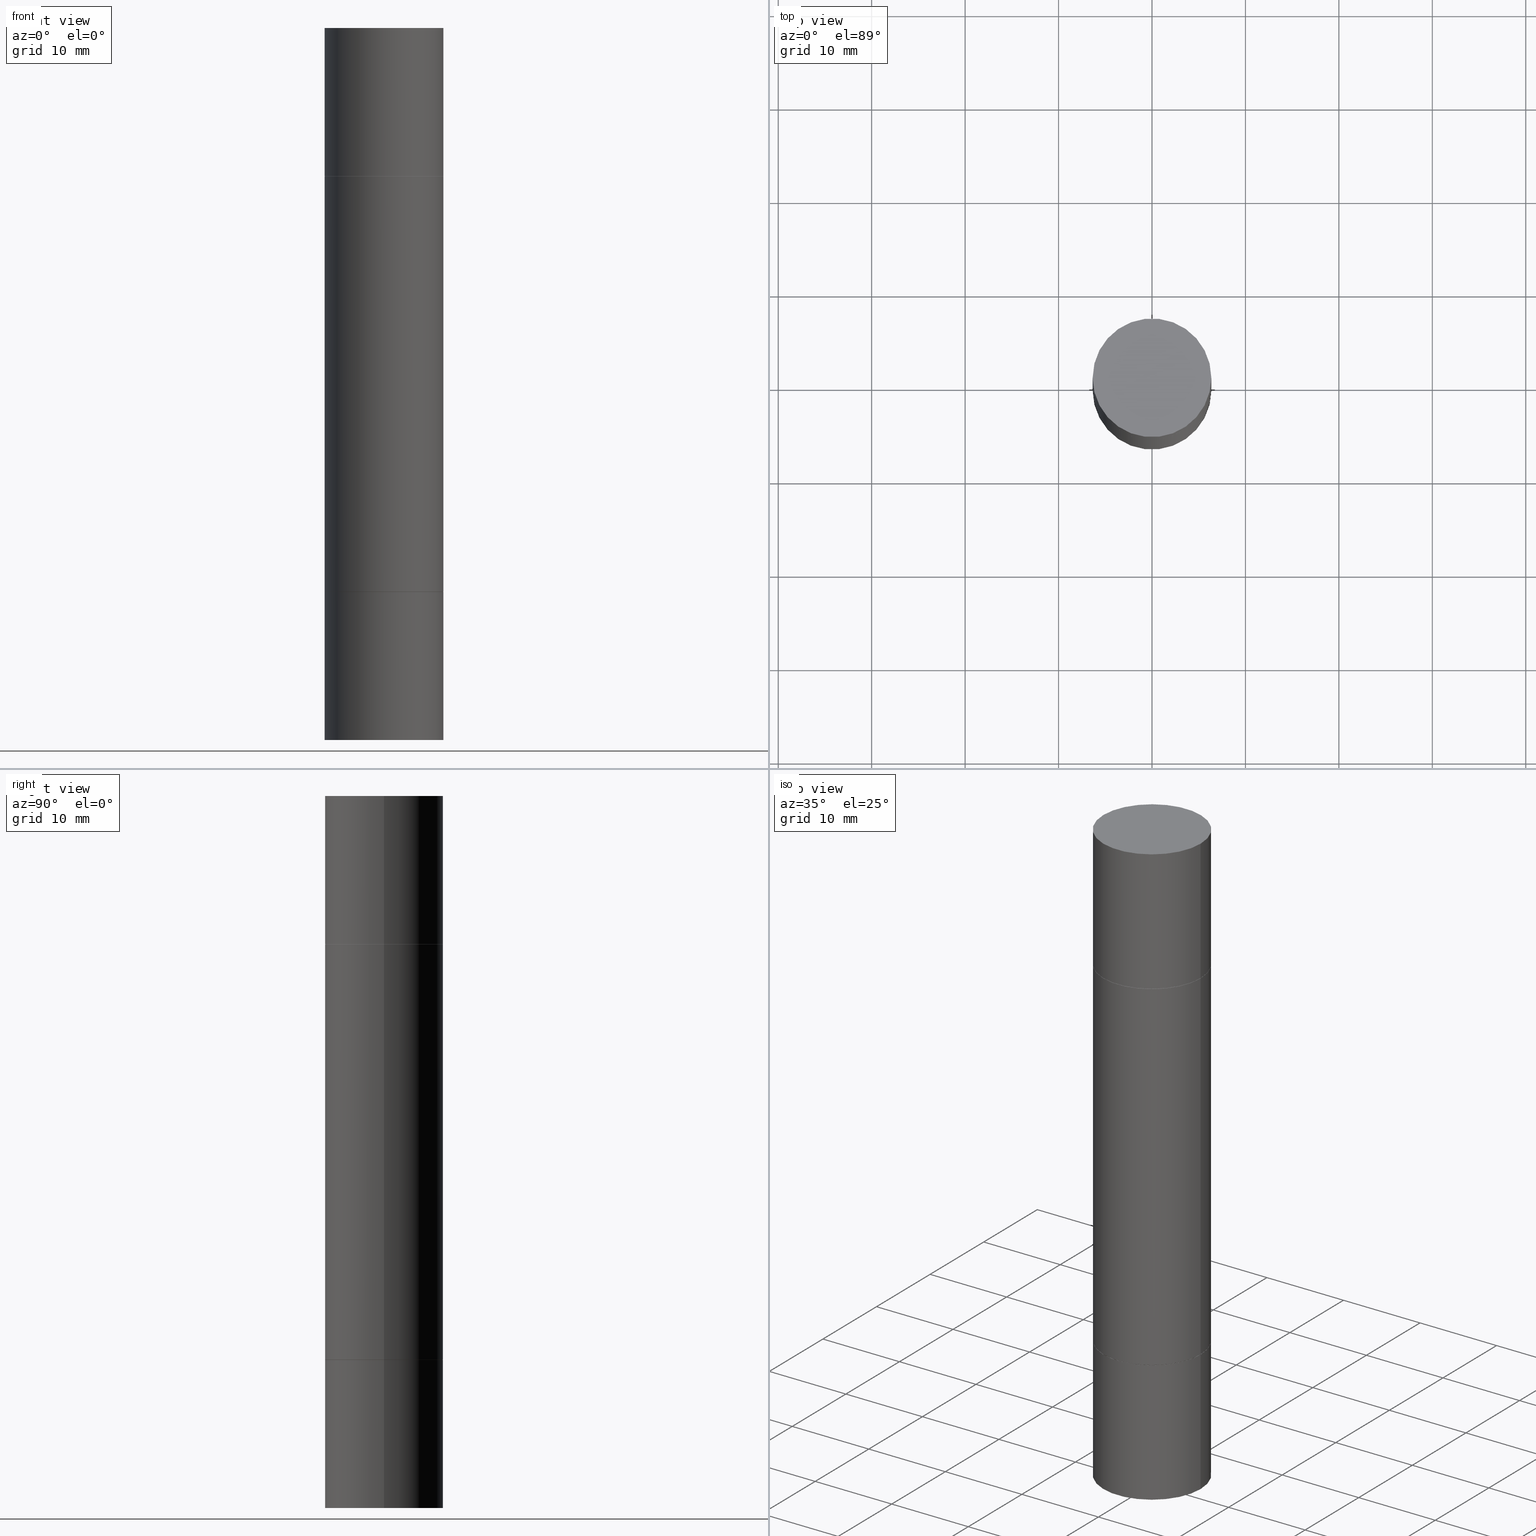
[diagram: canonical four-view strip — front | top / right | iso, engineering-drawing reading convention]
A machine part, canonical four-view strip (front | top / right | iso — engineering-drawing reading convention). The complete STEP part file that produces these views, byte-faithful:
ISO-10303-21;
HEADER;
FILE_DESCRIPTION (( 'STEP AP203' ),
    '1' );
FILE_NAME ('31579.STEP',
    '2024-03-04T15:43:16',
    ( '' ),
    ( '' ),
    'SwSTEP 2.0',
    'SolidWorks 2023',
    '' );
FILE_SCHEMA (( 'CONFIG_CONTROL_DESIGN' ));
ENDSEC;

DATA;
#1 = DIRECTION ( 'NONE',  ( 2.445468806185136597E-29, 3.492890411551752677E-15, 1.000000000000000000 ) ) ;
#2 = CARTESIAN_POINT ( 'NONE',  ( 0.2499999999999998335, -5.456569567838164864E-15, -1.499999999999999556 ) ) ;
#3 = ORIENTED_EDGE ( 'NONE', *, *, #418, .F. ) ;
#4 = CYLINDRICAL_SURFACE ( 'NONE', #509, 0.2499999999999998335 ) ;
#5 = PERSON_AND_ORGANIZATION ( #258, #582 ) ;
#6 = FACE_OUTER_BOUND ( 'NONE', #447, .T. ) ;
#7 = EDGE_CURVE ( 'NONE', #621, #54, #79, .T. ) ;
#8 = ORIENTED_EDGE ( 'NONE', *, *, #196, .T. ) ;
#9 = AXIS2_PLACEMENT_3D ( 'NONE', #560, #136, #131 ) ;
#10 = CYLINDRICAL_SURFACE ( 'NONE', #620, 0.2500000000000000000 ) ;
#11 = ADVANCED_FACE ( 'NONE', ( #77 ), #396, .F. ) ;
#12 = APPROVAL_ROLE ( '' ) ;
#13 = CARTESIAN_POINT ( 'NONE',  ( 1.745740669421624462E-15, 0.2499999999999978073, -0.6249999999999997780 ) ) ;
#14 = VERTEX_POINT ( 'NONE', #296 ) ;
#15 = CYLINDRICAL_SURFACE ( 'NONE', #318, 0.2500000000000000000 ) ;
#16 = PERSON_AND_ORGANIZATION_ROLE ( 'classification_officer' ) ;
#17 = DIRECTION ( 'NONE',  ( -2.445468806185136597E-29, -3.492890411551752677E-15, -1.000000000000000000 ) ) ;
#18 = ORIENTED_EDGE ( 'NONE', *, *, #84, .F. ) ;
#19 = ORIENTED_EDGE ( 'NONE', *, *, #148, .F. ) ;
#20 = ADVANCED_FACE ( 'NONE', ( #90 ), #453, .T. ) ;
#21 = CARTESIAN_POINT ( 'NONE',  ( 7.336406418555409790E-29, 2.113609062914567177E-18, 1.092739197465705287E-15 ) ) ;
#22 = DIRECTION ( 'NONE',  ( 1.000000000000000000, -6.982962677686266711E-15, 4.876176775795935793E-29 ) ) ;
#23 = ORIENTED_EDGE ( 'NONE', *, *, #141, .F. ) ;
#24 = FACE_OUTER_BOUND ( 'NONE', #634, .T. ) ;
#25 = EDGE_CURVE ( 'NONE', #515, #151, #456, .T. ) ;
#26 = VECTOR ( 'NONE', #88, 39.37007874015748143 ) ;
#27 = AXIS2_PLACEMENT_3D ( 'NONE', #482, #230, #225 ) ;
#28 = DIRECTION ( 'NONE',  ( 2.445468806185136597E-29, 3.492890411551752677E-15, 1.000000000000000000 ) ) ;
#29 =( CONVERSION_BASED_UNIT ( 'INCH', #501 ) LENGTH_UNIT ( ) NAMED_UNIT ( #126 ) );
#30 = CARTESIAN_POINT ( 'NONE',  ( 5.807988414689700538E-29, -2.180942898156930788E-15, -0.6249999999999988898 ) ) ;
#31 = DIRECTION ( 'NONE',  ( 1.000000000000000000, -6.982962677686266711E-15, 0.000000000000000000 ) ) ;
#32 = EDGE_CURVE ( 'NONE', #619, #345, #150, .T. ) ;
#33 = CC_DESIGN_PERSON_AND_ORGANIZATION_ASSIGNMENT ( #428, #586, ( #307 ) ) ;
#34 = DIRECTION ( 'NONE',  ( 2.438088387897959769E-29, 3.492890411551753071E-15, 1.000000000000000000 ) ) ;
#35 = AXIS2_PLACEMENT_3D ( 'NONE', #240, #28, #657 ) ;
#36 = AXIS2_PLACEMENT_3D ( 'NONE', #234, #299, #602 ) ;
#37 = CARTESIAN_POINT ( 'NONE',  ( -0.2489999999999999991, -4.726788967118193123E-16, -0.6249999999999988898 ) ) ;
#38 = CARTESIAN_POINT ( 'NONE',  ( -0.2500000000000000000, -8.761433126149462132E-15, -2.999999999999999112 ) ) ;
#39 = EDGE_CURVE ( 'NONE', #408, #336, #298, .T. ) ;
#40 = FACE_OUTER_BOUND ( 'NONE', #498, .T. ) ;
#41 = VERTEX_POINT ( 'NONE', #342 ) ;
#42 = CIRCLE ( 'NONE', #201, 0.2500000000000000000 ) ;
#43 = EDGE_LOOP ( 'NONE', ( #178, #435 ) ) ;
#44 = ORIENTED_EDGE ( 'NONE', *, *, #441, .F. ) ;
#45 = DIRECTION ( 'NONE',  ( 2.445468806185136597E-29, 3.492890411551752677E-15, 1.000000000000000000 ) ) ;
#46 = EDGE_CURVE ( 'NONE', #110, #528, #500, .T. ) ;
#47 = CARTESIAN_POINT ( 'NONE',  ( 0.000000000000000000, 0.000000000000000000, 0.000000000000000000 ) ) ;
#48 = AXIS2_PLACEMENT_3D ( 'NONE', #633, #468, #314 ) ;
#49 = AXIS2_PLACEMENT_3D ( 'NONE', #237, #547, #241 ) ;
#50 = LINE ( 'NONE', #529, #406 ) ;
#51 = APPROVAL_STATUS ( 'not_yet_approved' ) ;
#52 = LINE ( 'NONE', #615, #365 ) ;
#53 = EDGE_CURVE ( 'NONE', #306, #146, #138, .T. ) ;
#54 = VERTEX_POINT ( 'NONE', #300 ) ;
#55 = DIRECTION ( 'NONE',  ( -2.445468806185136597E-29, -3.492890411551752677E-15, -1.000000000000000000 ) ) ;
#56 = PERSON_AND_ORGANIZATION ( #258, #582 ) ;
#57 = LINE ( 'NONE', #252, #616 ) ;
#58 = ORIENTED_EDGE ( 'NONE', *, *, #203, .T. ) ;
#59 = FACE_OUTER_BOUND ( 'NONE', #259, .T. ) ;
#60 = APPROVAL_DATE_TIME ( #283, #156 ) ;
#61 = DIRECTION ( 'NONE',  ( 2.438088387897959769E-29, 3.492890411551753071E-15, 1.000000000000000000 ) ) ;
#62 = ORIENTED_EDGE ( 'NONE', *, *, #493, .F. ) ;
#63 = EDGE_LOOP ( 'NONE', ( #647, #236 ) ) ;
#64 = FACE_OUTER_BOUND ( 'NONE', #375, .T. ) ;
#65 = AXIS2_PLACEMENT_3D ( 'NONE', #357, #470, #413 ) ;
#66 = AXIS2_PLACEMENT_3D ( 'NONE', #372, #215, #321 ) ;
#67 = DATE_AND_TIME ( #271, #407 ) ;
#68 = FACE_OUTER_BOUND ( 'NONE', #484, .T. ) ;
#69 = ADVANCED_FACE ( 'NONE', ( #392 ), #104, .T. ) ;
#70 = ORIENTED_EDGE ( 'NONE', *, *, #457, .F. ) ;
#71 = CARTESIAN_POINT ( 'NONE',  ( 7.336406418555409790E-29, -1.047444401652943635E-14, -3.000000000000000444 ) ) ;
#72 = DATE_AND_TIME ( #229, #81 ) ;
#73 = CARTESIAN_POINT ( 'NONE',  ( 5.807988414689700538E-29, -2.180942898156930788E-15, -0.6249999999999988898 ) ) ;
#74 = ADVANCED_FACE ( 'NONE', ( #502 ), #200, .T. ) ;
#75 = ORIENTED_EDGE ( 'NONE', *, *, #251, .T. ) ;
#76 = DIRECTION ( 'NONE',  ( 2.445468806185136597E-29, 3.492890411551752677E-15, 1.000000000000000000 ) ) ;
#77 = FACE_OUTER_BOUND ( 'NONE', #157, .T. ) ;
#78 = DIRECTION ( 'NONE',  ( 1.000000000000000000, -6.982962677686266711E-15, 0.000000000000000000 ) ) ;
#79 = CIRCLE ( 'NONE', #35, 0.2500000000000000000 ) ;
#80 = AXIS2_PLACEMENT_3D ( 'NONE', #164, #169, #328 ) ;
#81 = LOCAL_TIME ( 10, 43, 16.00000000000000000, #219 ) ;
#82 = DIRECTION ( 'NONE',  ( 1.000000000000000000, -6.982962677686266711E-15, 0.000000000000000000 ) ) ;
#83 = CARTESIAN_POINT ( 'NONE',  ( 0.2489999999999999991, -3.919700604900811057E-15, -0.6249999999999988898 ) ) ;
#84 = EDGE_CURVE ( 'NONE', #281, #206, #85, .T. ) ;
#85 = LINE ( 'NONE', #243, #480 ) ;
#86 = ADVANCED_FACE ( 'NONE', ( #250 ), #505, .T. ) ;
#87 = DIRECTION ( 'NONE',  ( 2.445468806185136597E-29, 3.492890411551752677E-15, 1.000000000000000000 ) ) ;
#88 = DIRECTION ( 'NONE',  ( -2.445468806185136877E-29, -3.492890411551753071E-15, -1.000000000000000000 ) ) ;
#89 = CIRCLE ( 'NONE', #264, 0.2500000000000000000 ) ;
#90 = FACE_OUTER_BOUND ( 'NONE', #356, .T. ) ;
#91 = DIRECTION ( 'NONE',  ( 1.000000000000000000, -6.982962677686266711E-15, 0.000000000000000000 ) ) ;
#92 = PRODUCT_DEFINITION_SHAPE ( 'NONE', 'NONE',  #400 ) ;
#93 = ORIENTED_EDGE ( 'NONE', *, *, #139, .T. ) ;
#94 = AXIS2_PLACEMENT_3D ( 'NONE', #30, #552, #346 ) ;
#95 = AXIS2_PLACEMENT_3D ( 'NONE', #99, #467, #627 ) ;
#96 = ORIENTED_EDGE ( 'NONE', *, *, #174, .F. ) ;
#97 = ORIENTED_EDGE ( 'NONE', *, *, #25, .T. ) ;
#98 = ADVANCED_FACE ( 'NONE', ( #244 ), #603, .T. ) ;
#99 = CARTESIAN_POINT ( 'NONE',  ( 0.000000000000000000, 0.000000000000000000, -1.499999999999999556 ) ) ;
#100 = FACE_OUTER_BOUND ( 'NONE', #474, .T. ) ;
#101 = ORIENTED_EDGE ( 'NONE', *, *, #25, .F. ) ;
#102 = CARTESIAN_POINT ( 'NONE',  ( 0.2500000000000000000, -1.743627060358652092E-15, 1.092739197465705287E-15 ) ) ;
#103 = CARTESIAN_POINT ( 'NONE',  ( 5.805542945883514935E-29, -8.288776698413628688E-15, -2.374000000000000110 ) ) ;
#104 = CONICAL_SURFACE ( 'NONE', #497, 0.2489999999999999991, 0.7853981633974141952 ) ;
#105 = AXIS2_PLACEMENT_3D ( 'NONE', #334, #393, #132 ) ;
#106 = ORIENTED_EDGE ( 'NONE', *, *, #144, .F. ) ;
#107 = LOCAL_TIME ( 10, 43, 16.00000000000000000, #325 ) ;
#108 = DIRECTION ( 'NONE',  ( 1.000000000000000000, -6.982962677686266711E-15, 0.000000000000000000 ) ) ;
#109 = DIRECTION ( 'NONE',  ( -0.7071067811865232589, 7.493145998870265808E-15, 0.7071067811865715536 ) ) ;
#110 = VERTEX_POINT ( 'NONE', #508 ) ;
#111 = CARTESIAN_POINT ( 'NONE',  ( 0.2489999999999999991, -1.003102588649635236E-14, -2.375000000000000000 ) ) ;
#112 = APPROVAL_STATUS ( 'not_yet_approved' ) ;
#113 = LINE ( 'NONE', #637, #650 ) ;
#114 = ORIENTED_EDGE ( 'NONE', *, *, #249, .F. ) ;
#115 = DIRECTION ( 'NONE',  ( 1.000000000000000000, -6.982962677686265922E-15, 9.839502134516470631E-33 ) ) ;
#116 = APPROVAL_DATE_TIME ( #591, #175 ) ;
#117 = CARTESIAN_POINT ( 'NONE',  ( 0.000000000000000000, 0.000000000000000000, 0.000000000000000000 ) ) ;
#118 = EDGE_LOOP ( 'NONE', ( #469, #288, #494, #422 ) ) ;
#119 = CLOSED_SHELL ( 'NONE', ( #177, #98, #11, #274 ) ) ;
#120 = DIRECTION ( 'NONE',  ( 1.000000000000000000, -6.982962677686270655E-15, 0.000000000000000000 ) ) ;
#121 = AXIS2_PLACEMENT_3D ( 'NONE', #364, #55, #270 ) ;
#122 = AXIS2_PLACEMENT_3D ( 'NONE', #506, #297, #31 ) ;
#123 = CARTESIAN_POINT ( 'NONE',  ( 0.2500000000000000000, -3.926683567578497071E-15, -0.6249999999999988898 ) ) ;
#124 = ORIENTED_EDGE ( 'NONE', *, *, #638, .F. ) ;
#125 = DIRECTION ( 'NONE',  ( 1.000000000000000000, -6.982962677686266711E-15, 0.000000000000000000 ) ) ;
#126 = DIMENSIONAL_EXPONENTS ( 1.000000000000000000, 0.000000000000000000, 0.000000000000000000, 0.000000000000000000, 0.000000000000000000, 0.000000000000000000, 0.000000000000000000 ) ;
#127 = CARTESIAN_POINT ( 'NONE',  ( 0.2500000000000000000, -1.222229829501391170E-14, -2.999999999999999112 ) ) ;
#128 = CARTESIAN_POINT ( 'NONE',  ( 5.807988414689700538E-29, -8.292268179752471696E-15, -2.375000000000000000 ) ) ;
#129 = EDGE_CURVE ( 'NONE', #304, #54, #459, .T. ) ;
#130 = APPLICATION_PROTOCOL_DEFINITION ( 'international standard', 'config_control_design', 1994, #242 ) ;
#131 = DIRECTION ( 'NONE',  ( -1.000000000000000000, 6.982962677686265922E-15, -4.876176775795935793E-29 ) ) ;
#132 = DIRECTION ( 'NONE',  ( 1.000000000000000000, -6.982962677686267499E-15, 0.000000000000000000 ) ) ;
#133 = EDGE_CURVE ( 'NONE', #333, #338, #614, .T. ) ;
#134 = AXIS2_PLACEMENT_3D ( 'NONE', #576, #429, #268 ) ;
#135 = EDGE_CURVE ( 'NONE', #440, #273, #414, .T. ) ;
#136 = DIRECTION ( 'NONE',  ( 2.438088387897960049E-29, -3.491481338843145188E-15, -1.000000000000000000 ) ) ;
#137 = DIRECTION ( 'NONE',  ( 1.000000000000000000, -6.982962677686269866E-15, 0.000000000000000000 ) ) ;
#138 = LINE ( 'NONE', #38, #142 ) ;
#139 = EDGE_CURVE ( 'NONE', #184, #304, #660, .T. ) ;
#140 = CARTESIAN_POINT ( 'NONE',  ( 0.2500000000000000000, -1.222229829501391170E-14, -2.999999999999999112 ) ) ;
#141 = EDGE_CURVE ( 'NONE', #621, #440, #326, .T. ) ;
#142 = VECTOR ( 'NONE', #303, 39.37007874015748143 ) ;
#143 = AXIS2_PLACEMENT_3D ( 'NONE', #173, #190, #606 ) ;
#144 = EDGE_CURVE ( 'NONE', #273, #440, #208, .T. ) ;
#145 = DIRECTION ( 'NONE',  ( 2.445468806185136597E-29, 3.492890411551752677E-15, 1.000000000000000000 ) ) ;
#146 = VERTEX_POINT ( 'NONE', #583 ) ;
#147 = APPLICATION_CONTEXT ( 'configuration controlled 3d designs of mechanical parts and assemblies' ) ;
#148 = EDGE_CURVE ( 'NONE', #281, #151, #291, .T. ) ;
#149 = APPROVAL ( #51, 'UNSPECIFIED' ) ;
#150 = CIRCLE ( 'NONE', #578, 0.2489999999999999991 ) ;
#151 = VERTEX_POINT ( 'NONE', #526 ) ;
#152 = DIRECTION ( 'NONE',  ( 1.000000000000000000, -6.982962677686267499E-15, 0.000000000000000000 ) ) ;
#153 = CARTESIAN_POINT ( 'NONE',  ( 5.807988414689700538E-29, -2.180942898156930788E-15, -0.6249999999999988898 ) ) ;
#154 = CARTESIAN_POINT ( 'NONE',  ( 5.807988414689700538E-29, -8.292268179752471696E-15, -2.375000000000000000 ) ) ;
#155 = DIRECTION ( 'NONE',  ( -2.445468806185136877E-29, 3.491481338843145188E-15, 1.000000000000000000 ) ) ;
#156 = APPROVAL ( #433, 'UNSPECIFIED' ) ;
#157 = EDGE_LOOP ( 'NONE', ( #327, #629 ) ) ;
#158 = FACE_OUTER_BOUND ( 'NONE', #411, .T. ) ;
#159 = PERSON_AND_ORGANIZATION_ROLE ( 'creator' ) ;
#160 = CYLINDRICAL_SURFACE ( 'NONE', #676, 0.2500000000000000000 ) ;
#161 = AXIS2_PLACEMENT_3D ( 'NONE', #103, #567, #316 ) ;
#162 = AXIS2_PLACEMENT_3D ( 'NONE', #378, #17, #642 ) ;
#163 = ORIENTED_EDGE ( 'NONE', *, *, #409, .F. ) ;
#164 = CARTESIAN_POINT ( 'NONE',  ( 3.668203209277703774E-29, -5.237222008264716599E-15, -1.499999999999999556 ) ) ;
#165 = PERSON_AND_ORGANIZATION_ROLE ( 'design_supplier' ) ;
#166 = PLANE ( 'NONE',  #265 ) ;
#167 = ORIENTED_EDGE ( 'NONE', *, *, #541, .T. ) ;
#168 = ORIENTED_EDGE ( 'NONE', *, *, #638, .T. ) ;
#169 = DIRECTION ( 'NONE',  ( -0.000000000000000000, -3.492185875197449130E-15, -1.000000000000000000 ) ) ;
#170 = PERSON_AND_ORGANIZATION ( #258, #582 ) ;
#171 = CARTESIAN_POINT ( 'NONE',  ( 0.2500000000000000000, -1.743627060358652092E-15, 1.092739197465705287E-15 ) ) ;
#172 = ORIENTED_EDGE ( 'NONE', *, *, #231, .F. ) ;
#173 = CARTESIAN_POINT ( 'NONE',  ( 0.000000000000000000, -1.047655762559234344E-14, -2.999999999999999112 ) ) ;
#174 = EDGE_CURVE ( 'NONE', #345, #273, #52, .T. ) ;
#175 = APPROVAL ( #112, 'UNSPECIFIED' ) ;
#176 = CARTESIAN_POINT ( 'NONE',  ( -0.2489999999999999991, -6.517718313361599048E-15, -2.375000000000000000 ) ) ;
#177 = ADVANCED_FACE ( 'NONE', ( #263 ), #160, .T. ) ;
#178 = ORIENTED_EDGE ( 'NONE', *, *, #198, .T. ) ;
#179 = MANIFOLD_SOLID_BREP ( 'Mirror1[1]', #308 ) ;
#180 = CIRCLE ( 'NONE', #595, 0.2500000000000000000 ) ;
#181 = DIRECTION ( 'NONE',  ( 1.000000000000000000, -6.982962677686265922E-15, 4.876176775795935793E-29 ) ) ;
#182 = CIRCLE ( 'NONE', #652, 0.2489999999999999991 ) ;
#183 = CYLINDRICAL_SURFACE ( 'NONE', #162, 0.2499999999999998335 ) ;
#184 = VERTEX_POINT ( 'NONE', #272 ) ;
#185 = CARTESIAN_POINT ( 'NONE',  ( 5.805542945883514935E-29, -8.288776698413628688E-15, -2.374000000000000110 ) ) ;
#186 = DIRECTION ( 'NONE',  ( -2.438088387897959769E-29, -3.492890411551753071E-15, -1.000000000000000000 ) ) ;
#187 = CARTESIAN_POINT ( 'NONE',  ( 5.807988414689700538E-29, -8.292268179752471696E-15, -2.375000000000000000 ) ) ;
#188 = CARTESIAN_POINT ( 'NONE',  ( 5.807988414689700538E-29, -2.180942898156930788E-15, -0.6249999999999988898 ) ) ;
#189 = DIRECTION ( 'NONE',  ( -2.445468806185136877E-29, -3.492890411551753071E-15, -1.000000000000000000 ) ) ;
#190 = DIRECTION ( 'NONE',  ( -2.445468806185136597E-29, -3.492890411551752677E-15, -1.000000000000000000 ) ) ;
#191 = AXIS2_PLACEMENT_3D ( 'NONE', #401, #349, #562 ) ;
#192 = CIRCLE ( 'NONE', #27, 0.2489999999999999991 ) ;
#193 = CARTESIAN_POINT ( 'NONE',  ( 1.745740669421639647E-15, 0.2500000000000000000, 5.463695987328526437E-16 ) ) ;
#194 = CC_DESIGN_PERSON_AND_ORGANIZATION_ASSIGNMENT ( #56, #165, ( #369 ) ) ;
#195 = CARTESIAN_POINT ( 'NONE',  ( 5.807988414689700538E-29, -2.180942898156930788E-15, -0.6249999999999988898 ) ) ;
#196 = EDGE_CURVE ( 'NONE', #568, #338, #180, .T. ) ;
#197 = DIRECTION ( 'NONE',  ( 2.445468806185136597E-29, 3.492890411551752677E-15, 1.000000000000000000 ) ) ;
#198 = EDGE_CURVE ( 'NONE', #206, #14, #554, .T. ) ;
#199 = VECTOR ( 'NONE', #212, 39.37007874015748143 ) ;
#200 = CONICAL_SURFACE ( 'NONE', #94, 0.2489999999999999991, 0.7853981633974141952 ) ;
#201 = AXIS2_PLACEMENT_3D ( 'NONE', #361, #376, #575 ) ;
#202 = ORIENTED_EDGE ( 'NONE', *, *, #517, .F. ) ;
#203 = EDGE_CURVE ( 'NONE', #336, #146, #89, .T. ) ;
#204 = ORIENTED_EDGE ( 'NONE', *, *, #203, .F. ) ;
#205 = ORIENTED_EDGE ( 'NONE', *, *, #418, .T. ) ;
#206 = VERTEX_POINT ( 'NONE', #2 ) ;
#207 = CYLINDRICAL_SURFACE ( 'NONE', #483, 0.2500000000000000000 ) ;
#208 = CIRCLE ( 'NONE', #161, 0.2500000000000000000 ) ;
#209 = CONICAL_SURFACE ( 'NONE', #280, 0.2489999999999999991, 0.7853981633974141952 ) ;
#210 = ORIENTED_EDGE ( 'NONE', *, *, #517, .T. ) ;
#211 = CARTESIAN_POINT ( 'NONE',  ( 5.807988414689700538E-29, -2.180942898156930788E-15, -0.6249999999999988898 ) ) ;
#212 = DIRECTION ( 'NONE',  ( -2.445468806185136877E-29, -3.492890411551753071E-15, -1.000000000000000000 ) ) ;
#213 = ORIENTED_EDGE ( 'NONE', *, *, #39, .T. ) ;
#214 = CARTESIAN_POINT ( 'NONE',  ( 7.336406418555409790E-29, 2.113609062914567177E-18, 1.092739197465705287E-15 ) ) ;
#215 = DIRECTION ( 'NONE',  ( 0.000000000000000000, 0.000000000000000000, 1.000000000000000000 ) ) ;
#216 = CARTESIAN_POINT ( 'NONE',  ( -0.2500000000000000000, -8.761433126149462132E-15, -2.999999999999999112 ) ) ;
#217 = ORIENTED_EDGE ( 'NONE', *, *, #53, .F. ) ;
#218 = DIRECTION ( 'NONE',  ( 1.000000000000000000, -6.982962677686269866E-15, 0.000000000000000000 ) ) ;
#219 = COORDINATED_UNIVERSAL_TIME_OFFSET ( 5, 0, .BEHIND. ) ;
#220 = CYLINDRICAL_SURFACE ( 'NONE', #134, 0.2500000000000000000 ) ;
#221 = LOCAL_TIME ( 10, 43, 16.00000000000000000, #276 ) ;
#222 = ORIENTED_EDGE ( 'NONE', *, *, #53, .T. ) ;
#223 = DIRECTION ( 'NONE',  ( -2.438088387897959769E-29, -3.492890411551753071E-15, -1.000000000000000000 ) ) ;
#224 = DATE_TIME_ROLE ( 'classification_date' ) ;
#225 = DIRECTION ( 'NONE',  ( 1.000000000000000000, -6.982962677686266711E-15, 0.000000000000000000 ) ) ;
#226 = ADVANCED_FACE ( 'NONE', ( #100 ), #628, .T. ) ;
#227 = VERTEX_POINT ( 'NONE', #322 ) ;
#228 =( LENGTH_UNIT ( ) NAMED_UNIT ( * ) SI_UNIT ( $, .METRE. ) );
#229 = CALENDAR_DATE ( 2024, 4, 3 ) ;
#230 = DIRECTION ( 'NONE',  ( 2.445468806185136597E-29, 3.492890411551752677E-15, 1.000000000000000000 ) ) ;
#231 = EDGE_CURVE ( 'NONE', #370, #41, #113, .T. ) ;
#232 = ORIENTED_EDGE ( 'NONE', *, *, #441, .T. ) ;
#233 = ORIENTED_EDGE ( 'NONE', *, *, #253, .T. ) ;
#234 = CARTESIAN_POINT ( 'NONE',  ( 5.807988414689700538E-29, -8.292268179752471696E-15, -2.375000000000000000 ) ) ;
#235 = CARTESIAN_POINT ( 'NONE',  ( -0.2489999999999999991, -4.709950929187094786E-16, -0.6249999999999988898 ) ) ;
#236 = ORIENTED_EDGE ( 'NONE', *, *, #532, .F. ) ;
#237 = CARTESIAN_POINT ( 'NONE',  ( 5.807988414689700538E-29, -8.292268179752471696E-15, -2.375000000000000000 ) ) ;
#238 = AXIS2_PLACEMENT_3D ( 'NONE', #211, #579, #108 ) ;
#239 = ADVANCED_FACE ( 'NONE', ( #40 ), #220, .T. ) ;
#240 = CARTESIAN_POINT ( 'NONE',  ( 5.805542945883514935E-29, -2.184435788568482141E-15, -0.6259999999999990017 ) ) ;
#241 = DIRECTION ( 'NONE',  ( 1.000000000000000000, -6.982962677686266711E-15, 0.000000000000000000 ) ) ;
#242 = APPLICATION_CONTEXT ( 'configuration controlled 3d designs of mechanical parts and assemblies' ) ;
#243 = CARTESIAN_POINT ( 'NONE',  ( 0.2499999999999998335, -1.222229829501391012E-14, -2.999999999999999112 ) ) ;
#244 = FACE_OUTER_BOUND ( 'NONE', #656, .T. ) ;
#245 = AXIS2_PLACEMENT_3D ( 'NONE', #405, #521, #91 ) ;
#246 = VECTOR ( 'NONE', #531, 39.37007874015748854 ) ;
#247 = EDGE_LOOP ( 'NONE', ( #312, #648, #75, #639 ) ) ;
#248 = DIRECTION ( 'NONE',  ( -1.000000000000000000, 6.982962677686265922E-15, -9.839502134516470631E-33 ) ) ;
#249 = EDGE_CURVE ( 'NONE', #227, #568, #472, .T. ) ;
#250 = FACE_OUTER_BOUND ( 'NONE', #269, .T. ) ;
#251 = EDGE_CURVE ( 'NONE', #184, #621, #425, .T. ) ;
#252 = CARTESIAN_POINT ( 'NONE',  ( -0.2499999999999998335, -8.761433126149462132E-15, -2.999999999999999112 ) ) ;
#253 = EDGE_CURVE ( 'NONE', #54, #273, #57, .T. ) ;
#254 = ORIENTED_EDGE ( 'NONE', *, *, #135, .F. ) ;
#255 = AXIS2_PLACEMENT_3D ( 'NONE', #572, #1, #320 ) ;
#256 = ADVANCED_FACE ( 'NONE', ( #6 ), #166, .F. ) ;
#257 = ORIENTED_EDGE ( 'NONE', *, *, #590, .T. ) ;
#258 = PERSON ( 'UNSPECIFIED', 'UNSPECIFIED', 'UNSPECIFIED', ('UNSPECIFIED'), ('UNSPECIFIED'), ('UNSPECIFIED') ) ;
#259 = EDGE_LOOP ( 'NONE', ( #114, #124, #518, #257 ) ) ;
#260 = ORIENTED_EDGE ( 'NONE', *, *, #141, .T. ) ;
#261 = ORIENTED_EDGE ( 'NONE', *, *, #46, .F. ) ;
#262 = FACE_OUTER_BOUND ( 'NONE', #43, .T. ) ;
#263 = FACE_OUTER_BOUND ( 'NONE', #550, .T. ) ;
#264 = AXIS2_PLACEMENT_3D ( 'NONE', #358, #573, #305 ) ;
#265 = AXIS2_PLACEMENT_3D ( 'NONE', #373, #61, #667 ) ;
#266 = LINE ( 'NONE', #282, #384 ) ;
#267 = PERSON_AND_ORGANIZATION ( #258, #582 ) ;
#268 = DIRECTION ( 'NONE',  ( 1.000000000000000000, -6.982962677686270655E-15, 0.000000000000000000 ) ) ;
#269 = EDGE_LOOP ( 'NONE', ( #168, #232 ) ) ;
#270 = DIRECTION ( 'NONE',  ( 1.000000000000000000, -6.982962677686266711E-15, 0.000000000000000000 ) ) ;
#271 = CALENDAR_DATE ( 2024, 4, 3 ) ;
#272 = CARTESIAN_POINT ( 'NONE',  ( 0.2489999999999999991, -3.919700604900811057E-15, -0.6249999999999988898 ) ) ;
#273 = VERTEX_POINT ( 'NONE', #512 ) ;
#274 = ADVANCED_FACE ( 'NONE', ( #460 ), #207, .T. ) ;
#275 = CARTESIAN_POINT ( 'NONE',  ( 7.336406418555409790E-29, 2.113609062914567177E-18, 1.092739197465705287E-15 ) ) ;
#276 = COORDINATED_UNIVERSAL_TIME_OFFSET ( 5, 0, .BEHIND. ) ;
#277 = DIRECTION ( 'NONE',  ( -0.000000000000000000, -3.492185875197449130E-15, -1.000000000000000000 ) ) ;
#278 = EDGE_CURVE ( 'NONE', #151, #281, #670, .T. ) ;
#279 = AXIS2_PLACEMENT_3D ( 'NONE', #185, #389, #339 ) ;
#280 = AXIS2_PLACEMENT_3D ( 'NONE', #154, #630, #218 ) ;
#281 = VERTEX_POINT ( 'NONE', #330 ) ;
#282 = CARTESIAN_POINT ( 'NONE',  ( -0.2499999999999998335, -8.761433126149462132E-15, -2.999999999999999112 ) ) ;
#283 = DATE_AND_TIME ( #641, #566 ) ;
#284 = PLANE ( 'NONE',  #309 ) ;
#285 = EDGE_LOOP ( 'NONE', ( #452, #233, #466, #23 ) ) ;
#286 = CARTESIAN_POINT ( 'NONE',  ( -0.2500000000000000000, 6.257098548958748880E-16, -0.6249999999999988898 ) ) ;
#287 = DIRECTION ( 'NONE',  ( -2.445468806185136597E-29, -3.492890411551752677E-15, -1.000000000000000000 ) ) ;
#288 = ORIENTED_EDGE ( 'NONE', *, *, #129, .T. ) ;
#289 = ORIENTED_EDGE ( 'NONE', *, *, #196, .F. ) ;
#290 = FACE_OUTER_BOUND ( 'NONE', #540, .T. ) ;
#291 = CIRCLE ( 'NONE', #245, 0.2500000000000000000 ) ;
#292 = DIRECTION ( 'NONE',  ( -2.445468806185136597E-29, 3.491481338843145583E-15, 1.000000000000000000 ) ) ;
#293 = DIRECTION ( 'NONE',  ( 1.000000000000000000, -6.982962677686266711E-15, 0.000000000000000000 ) ) ;
#294 = CIRCLE ( 'NONE', #672, 0.2500000000000000000 ) ;
#295 = APPROVAL_PERSON_ORGANIZATION ( #267, #175, #536 ) ;
#296 = CARTESIAN_POINT ( 'NONE',  ( -0.2499999999999998335, -1.995704398973716874E-15, -1.499999999999999556 ) ) ;
#297 = DIRECTION ( 'NONE',  ( 2.445468806185136597E-29, 3.492890411551752677E-15, 1.000000000000000000 ) ) ;
#298 = LINE ( 'NONE', #127, #26 ) ;
#299 = DIRECTION ( 'NONE',  ( -2.445468806185136597E-29, 3.491481338843145583E-15, 1.000000000000000000 ) ) ;
#300 = CARTESIAN_POINT ( 'NONE',  ( -0.2500000000000000000, -4.693112891255996450E-16, -0.6259999999999990017 ) ) ;
#301 = CIRCLE ( 'NONE', #415, 0.2500000000000000000 ) ;
#302 = CC_DESIGN_APPROVAL ( #156, ( #369 ) ) ;
#303 = DIRECTION ( 'NONE',  ( -2.445468806185136877E-29, -3.492890411551753071E-15, -1.000000000000000000 ) ) ;
#304 = VERTEX_POINT ( 'NONE', #235 ) ;
#305 = DIRECTION ( 'NONE',  ( 1.000000000000000000, -6.982962677686266711E-15, 0.000000000000000000 ) ) ;
#306 = VERTEX_POINT ( 'NONE', #543 ) ;
#307 = PRODUCT ( '31579', '31579', '', ( #476 ) ) ;
#308 = CLOSED_SHELL ( 'NONE', ( #340, #74, #465, #617, #503, #574 ) ) ;
#309 = AXIS2_PLACEMENT_3D ( 'NONE', #13, #488, #434 ) ;
#310 = EDGE_LOOP ( 'NONE', ( #172, #495, #675, #604 ) ) ;
#311 = CC_DESIGN_PERSON_AND_ORGANIZATION_ASSIGNMENT ( #381, #159, ( #400 ) ) ;
#312 = ORIENTED_EDGE ( 'NONE', *, *, #129, .F. ) ;
#313 = PLANE ( 'NONE',  #565 ) ;
#314 = DIRECTION ( 'NONE',  ( -1.000000000000000000, 6.982962677686265922E-15, -9.839502134516470631E-33 ) ) ;
#315 = CARTESIAN_POINT ( 'NONE',  ( 0.000000000000000000, -1.047655762559234344E-14, -2.999999999999999112 ) ) ;
#316 = DIRECTION ( 'NONE',  ( 1.000000000000000000, -6.982962677686266711E-15, 0.000000000000000000 ) ) ;
#317 = VECTOR ( 'NONE', #612, 39.37007874015748854 ) ;
#318 = AXIS2_PLACEMENT_3D ( 'NONE', #315, #522, #678 ) ;
#319 = ORIENTED_EDGE ( 'NONE', *, *, #148, .T. ) ;
#320 = DIRECTION ( 'NONE',  ( 1.000000000000000000, -6.982962677686266711E-15, 0.000000000000000000 ) ) ;
#321 = DIRECTION ( 'NONE',  ( 1.000000000000000000, 0.000000000000000000, 0.000000000000000000 ) ) ;
#322 = CARTESIAN_POINT ( 'NONE',  ( -0.2500000000000000000, 6.257098548958748880E-16, 1.092739197465709232E-15 ) ) ;
#323 = ORIENTED_EDGE ( 'NONE', *, *, #32, .T. ) ;
#324 = DIRECTION ( 'NONE',  ( 0.7071067811865232589, -2.468850131082003836E-15, 0.7071067811865715536 ) ) ;
#325 = COORDINATED_UNIVERSAL_TIME_OFFSET ( 5, 0, .BEHIND. ) ;
#326 = LINE ( 'NONE', #624, #199 ) ;
#327 = ORIENTED_EDGE ( 'NONE', *, *, #601, .T. ) ;
#328 = DIRECTION ( 'NONE',  ( 0.000000000000000000, 1.000000000000000000, -3.278217592397118229E-15 ) ) ;
#329 = SHAPE_DEFINITION_REPRESENTATION ( #92, #535 ) ;
#330 = CARTESIAN_POINT ( 'NONE',  ( 0.2500000000000000000, -3.930176457990049608E-15, -0.6259999999999990017 ) ) ;
#331 = CIRCLE ( 'NONE', #598, 0.2489999999999999991 ) ;
#332 = CONICAL_SURFACE ( 'NONE', #36, 0.2489999999999999991, 0.7853981633974141952 ) ;
#333 = VERTEX_POINT ( 'NONE', #171 ) ;
#334 = CARTESIAN_POINT ( 'NONE',  ( 0.000000000000000000, -1.047655762559234344E-14, -2.999999999999999112 ) ) ;
#335 = DIRECTION ( 'NONE',  ( 1.000000000000000000, -6.982962677686266711E-15, 0.000000000000000000 ) ) ;
#336 = VERTEX_POINT ( 'NONE', #123 ) ;
#337 = CARTESIAN_POINT ( 'NONE',  ( 0.2500000000000000000, -1.003800884917403837E-14, -2.375000000000000000 ) ) ;
#338 = VERTEX_POINT ( 'NONE', #651 ) ;
#339 = DIRECTION ( 'NONE',  ( 1.000000000000000000, -6.982962677686266711E-15, 0.000000000000000000 ) ) ;
#340 = ADVANCED_FACE ( 'NONE', ( #597 ), #183, .T. ) ;
#341 = VECTOR ( 'NONE', #510, 39.37007874015748143 ) ;
#342 = CARTESIAN_POINT ( 'NONE',  ( -0.2500000000000000000, -7.606999258740704349E-15, -2.375000000000000000 ) ) ;
#343 = CIRCLE ( 'NONE', #238, 0.2500000000000000000 ) ;
#344 = CARTESIAN_POINT ( 'NONE',  ( 5.807988414689700538E-29, -2.180942898156930788E-15, -0.6249999999999988898 ) ) ;
#345 = VERTEX_POINT ( 'NONE', #176 ) ;
#346 = DIRECTION ( 'NONE',  ( 1.000000000000000000, -6.982962677686266711E-15, 0.000000000000000000 ) ) ;
#347 = FACE_OUTER_BOUND ( 'NONE', #644, .T. ) ;
#348 = ADVANCED_FACE ( 'NONE', ( #68 ), #284, .F. ) ;
#349 = DIRECTION ( 'NONE',  ( 2.438088387897960049E-29, -3.491481338843145188E-15, -1.000000000000000000 ) ) ;
#350 = DIRECTION ( 'NONE',  ( 1.000000000000000000, -6.982962677686269866E-15, 0.000000000000000000 ) ) ;
#351 = CIRCLE ( 'NONE', #49, 0.2500000000000000000 ) ;
#352 = UNCERTAINTY_MEASURE_WITH_UNIT (LENGTH_MEASURE( 1.000000000000000082E-05 ), #29, 'distance_accuracy_value', 'NONE');
#353 = DIRECTION ( 'NONE',  ( 0.000000000000000000, 1.000000000000000000, -3.278217592397118229E-15 ) ) ;
#354 = ORIENTED_EDGE ( 'NONE', *, *, #249, .T. ) ;
#355 = EDGE_CURVE ( 'NONE', #515, #539, #192, .T. ) ;
#356 = EDGE_LOOP ( 'NONE', ( #44, #354, #8, #600 ) ) ;
#357 = CARTESIAN_POINT ( 'NONE',  ( 7.336406418555409790E-29, -1.047444401652943635E-14, -3.000000000000000444 ) ) ;
#358 = CARTESIAN_POINT ( 'NONE',  ( 5.807988414689700538E-29, -2.180942898156930788E-15, -0.6249999999999988898 ) ) ;
#359 = ORIENTED_EDGE ( 'NONE', *, *, #391, .F. ) ;
#360 = ADVANCED_FACE ( 'NONE', ( #549 ), #555, .T. ) ;
#361 = CARTESIAN_POINT ( 'NONE',  ( 7.336406418555409790E-29, 2.113609062914567177E-18, 1.092739197465705287E-15 ) ) ;
#362 = DIRECTION ( 'NONE',  ( 1.000000000000000000, -6.982962677686266711E-15, 4.876176775795935793E-29 ) ) ;
#363 = EDGE_LOOP ( 'NONE', ( #449, #680, #571, #18 ) ) ;
#364 = CARTESIAN_POINT ( 'NONE',  ( 5.807988414689700538E-29, -2.180942898156930788E-15, -0.6249999999999988898 ) ) ;
#365 = VECTOR ( 'NONE', #109, 39.37007874015748854 ) ;
#366 = APPROVAL_ROLE ( '' ) ;
#367 = CARTESIAN_POINT ( 'NONE',  ( 0.2489999999999999991, -3.919700604900811057E-15, -0.6249999999999988898 ) ) ;
#368 = CIRCLE ( 'NONE', #397, 0.2500000000000000000 ) ;
#369 = PRODUCT_DEFINITION_FORMATION_WITH_SPECIFIED_SOURCE ( 'ANY', '', #307, .NOT_KNOWN. ) ;
#370 = VERTEX_POINT ( 'NONE', #492 ) ;
#371 = CARTESIAN_POINT ( 'NONE',  ( -0.2489999999999999991, -4.709950929187094786E-16, -0.6249999999999988898 ) ) ;
#372 = CARTESIAN_POINT ( 'NONE',  ( 0.000000000000000000, 0.000000000000000000, 0.000000000000000000 ) ) ;
#373 = CARTESIAN_POINT ( 'NONE',  ( 1.745740669421624462E-15, 0.2499999999999978073, -0.6249999999999997780 ) ) ;
#374 = ORIENTED_EDGE ( 'NONE', *, *, #135, .T. ) ;
#375 = EDGE_LOOP ( 'NONE', ( #96, #666, #210, #106 ) ) ;
#376 = DIRECTION ( 'NONE',  ( 2.445468806185136597E-29, 3.492890411551752677E-15, 1.000000000000000000 ) ) ;
#377 = PERSON_AND_ORGANIZATION_ROLE ( 'creator' ) ;
#378 = CARTESIAN_POINT ( 'NONE',  ( 0.000000000000000000, -1.047655762559234344E-14, -2.999999999999999112 ) ) ;
#379 = ORIENTED_EDGE ( 'NONE', *, *, #84, .T. ) ;
#380 =( NAMED_UNIT ( * ) PLANE_ANGLE_UNIT ( ) SI_UNIT ( $, .RADIAN. ) );
#381 = PERSON_AND_ORGANIZATION ( #258, #582 ) ;
#382 = DIRECTION ( 'NONE',  ( -2.445468806185136597E-29, 3.491481338843145583E-15, 1.000000000000000000 ) ) ;
#383 = AXIS2_PLACEMENT_3D ( 'NONE', #671, #277, #353 ) ;
#384 = VECTOR ( 'NONE', #486, 39.37007874015748143 ) ;
#385 = CC_DESIGN_APPROVAL ( #149, ( #400 ) ) ;
#386 = ORIENTED_EDGE ( 'NONE', *, *, #471, .F. ) ;
#387 = FACE_OUTER_BOUND ( 'NONE', #436, .T. ) ;
#388 = ADVANCED_FACE ( 'NONE', ( #438 ), #313, .F. ) ;
#389 = DIRECTION ( 'NONE',  ( -2.445468806185136597E-29, 3.491481338843145583E-15, 1.000000000000000000 ) ) ;
#390 = DIRECTION ( 'NONE',  ( 1.000000000000000000, -6.982962677686266711E-15, 0.000000000000000000 ) ) ;
#391 = EDGE_CURVE ( 'NONE', #146, #336, #343, .T. ) ;
#392 = FACE_OUTER_BOUND ( 'NONE', #118, .T. ) ;
#393 = DIRECTION ( 'NONE',  ( -2.445468806185136597E-29, -3.492890411551752677E-15, -1.000000000000000000 ) ) ;
#394 = ORIENTED_EDGE ( 'NONE', *, *, #493, .T. ) ;
#395 = AXIS2_PLACEMENT_3D ( 'NONE', #450, #659, #664 ) ;
#396 = PLANE ( 'NONE',  #9 ) ;
#397 = AXIS2_PLACEMENT_3D ( 'NONE', #214, #519, #427 ) ;
#398 = DIRECTION ( 'NONE',  ( -2.438088387897960049E-29, 3.491481338843145188E-15, 1.000000000000000000 ) ) ;
#399 = CC_DESIGN_SECURITY_CLASSIFICATION ( #525, ( #369 ) ) ;
#400 = PRODUCT_DEFINITION ( 'UNKNOWN', '', #369, #439 ) ;
#401 = CARTESIAN_POINT ( 'NONE',  ( 1.745740669421639647E-15, 0.2499999999999895084, -3.000000000000001332 ) ) ;
#402 = DIRECTION ( 'NONE',  ( -0.7071067811865232589, 2.381258160591016070E-15, -0.7071067811865715536 ) ) ;
#403 = MANIFOLD_SOLID_BREP ( 'Mirror1[4]', #607 ) ;
#404 = EDGE_CURVE ( 'NONE', #306, #408, #42, .T. ) ;
#405 = CARTESIAN_POINT ( 'NONE',  ( 5.805542945883514935E-29, -2.184435788568482141E-15, -0.6259999999999990017 ) ) ;
#406 = VECTOR ( 'NONE', #542, 39.37007874015748854 ) ;
#407 = LOCAL_TIME ( 10, 43, 16.00000000000000000, #530 ) ;
#408 = VERTEX_POINT ( 'NONE', #102 ) ;
#409 = EDGE_CURVE ( 'NONE', #14, #206, #609, .T. ) ;
#410 = ORIENTED_EDGE ( 'NONE', *, *, #253, .F. ) ;
#411 = EDGE_LOOP ( 'NONE', ( #101, #3, #490, #319 ) ) ;
#412 = ORIENTED_EDGE ( 'NONE', *, *, #231, .T. ) ;
#413 = DIRECTION ( 'NONE',  ( 1.000000000000000000, -6.982962677686262766E-15, 0.000000000000000000 ) ) ;
#414 = CIRCLE ( 'NONE', #279, 0.2500000000000000000 ) ;
#415 = AXIS2_PLACEMENT_3D ( 'NONE', #275, #45, #423 ) ;
#416 = CIRCLE ( 'NONE', #122, 0.2500000000000000000 ) ;
#417 = CARTESIAN_POINT ( 'NONE',  ( 5.807988414689700538E-29, -2.180942898156930788E-15, -0.6249999999999988898 ) ) ;
#418 = EDGE_CURVE ( 'NONE', #539, #515, #544, .T. ) ;
#419 = ORIENTED_EDGE ( 'NONE', *, *, #404, .T. ) ;
#420 = PLANE ( 'NONE',  #95 ) ;
#421 = DIRECTION ( 'NONE',  ( -2.445468806185136597E-29, 3.491481338843145583E-15, 1.000000000000000000 ) ) ;
#422 = ORIENTED_EDGE ( 'NONE', *, *, #251, .F. ) ;
#423 = DIRECTION ( 'NONE',  ( 1.000000000000000000, -6.982962677686266711E-15, 0.000000000000000000 ) ) ;
#424 = DATE_TIME_ROLE ( 'creation_date' ) ;
#425 = LINE ( 'NONE', #367, #246 ) ;
#426 = ORIENTED_EDGE ( 'NONE', *, *, #39, .F. ) ;
#427 = DIRECTION ( 'NONE',  ( 1.000000000000000000, -6.982962677686266711E-15, 0.000000000000000000 ) ) ;
#428 = PERSON_AND_ORGANIZATION ( #258, #582 ) ;
#429 = DIRECTION ( 'NONE',  ( -2.445468806185136597E-29, -3.492890411551752677E-15, -1.000000000000000000 ) ) ;
#430 = CONICAL_SURFACE ( 'NONE', #121, 0.2489999999999999991, 0.7853981633974141952 ) ;
#431 = ORIENTED_EDGE ( 'NONE', *, *, #601, .F. ) ;
#432 = CARTESIAN_POINT ( 'NONE',  ( 0.000000000000000000, -1.047655762559234344E-14, -2.999999999999999112 ) ) ;
#433 = APPROVAL_STATUS ( 'not_yet_approved' ) ;
#434 = DIRECTION ( 'NONE',  ( -1.000000000000000000, 6.982962677686265922E-15, -9.839502134516470631E-33 ) ) ;
#435 = ORIENTED_EDGE ( 'NONE', *, *, #409, .T. ) ;
#436 = EDGE_LOOP ( 'NONE', ( #323, #577, #254, #202 ) ) ;
#437 = CYLINDRICAL_SURFACE ( 'NONE', #143, 0.2499999999999998335 ) ;
#438 = FACE_OUTER_BOUND ( 'NONE', #584, .T. ) ;
#439 = DESIGN_CONTEXT ( 'detailed design', #147, 'design' ) ;
#440 = VERTEX_POINT ( 'NONE', #534 ) ;
#441 = EDGE_CURVE ( 'NONE', #227, #333, #368, .T. ) ;
#442 = SECURITY_CLASSIFICATION_LEVEL ( 'unclassified' ) ;
#443 = DIRECTION ( 'NONE',  ( 1.000000000000000000, -6.982962677686266711E-15, 0.000000000000000000 ) ) ;
#444 = CLOSED_SHELL ( 'NONE', ( #661, #511, #69, #388, #360, #537, #473, #527 ) ) ;
#445 = CIRCLE ( 'NONE', #523, 0.2500000000000000000 ) ;
#446 = CIRCLE ( 'NONE', #622, 0.2500000000000000000 ) ;
#447 = EDGE_LOOP ( 'NONE', ( #204, #359 ) ) ;
#448 = DIRECTION ( 'NONE',  ( -2.445468806185136597E-29, 3.491481338843145583E-15, 1.000000000000000000 ) ) ;
#449 = ORIENTED_EDGE ( 'NONE', *, *, #278, .F. ) ;
#450 = CARTESIAN_POINT ( 'NONE',  ( 0.000000000000000000, -1.047655762559234344E-14, -2.999999999999999112 ) ) ;
#451 = DIRECTION ( 'NONE',  ( -2.445468806185136597E-29, 3.491481338843145583E-15, 1.000000000000000000 ) ) ;
#452 = ORIENTED_EDGE ( 'NONE', *, *, #669, .F. ) ;
#453 = CYLINDRICAL_SURFACE ( 'NONE', #395, 0.2500000000000000000 ) ;
#454 = AXIS2_PLACEMENT_3D ( 'NONE', #128, #398, #181 ) ;
#455 =( NAMED_UNIT ( * ) SI_UNIT ( $, .STERADIAN. ) SOLID_ANGLE_UNIT ( ) );
#456 = LINE ( 'NONE', #605, #317 ) ;
#457 = EDGE_CURVE ( 'NONE', #408, #306, #301, .T. ) ;
#458 = CC_DESIGN_PERSON_AND_ORGANIZATION_ASSIGNMENT ( #487, #377, ( #369 ) ) ;
#459 = LINE ( 'NONE', #37, #563 ) ;
#460 = FACE_OUTER_BOUND ( 'NONE', #310, .T. ) ;
#461 = ADVANCED_FACE ( 'NONE', ( #59 ), #15, .T. ) ;
#462 = VECTOR ( 'NONE', #538, 39.37007874015748143 ) ;
#463 = ORIENTED_EDGE ( 'NONE', *, *, #489, .F. ) ;
#464 = CC_DESIGN_PERSON_AND_ORGANIZATION_ASSIGNMENT ( #581, #16, ( #525 ) ) ;
#465 = ADVANCED_FACE ( 'NONE', ( #262 ), #420, .F. ) ;
#466 = ORIENTED_EDGE ( 'NONE', *, *, #144, .T. ) ;
#467 = DIRECTION ( 'NONE',  ( 0.000000000000000000, 3.492185875197449524E-15, 1.000000000000000000 ) ) ;
#468 = DIRECTION ( 'NONE',  ( 2.438088387897959769E-29, 3.492890411551753071E-15, 1.000000000000000000 ) ) ;
#469 = ORIENTED_EDGE ( 'NONE', *, *, #541, .F. ) ;
#470 = DIRECTION ( 'NONE',  ( -2.445468806185136597E-29, 3.491481338843145583E-15, 1.000000000000000000 ) ) ;
#471 = EDGE_CURVE ( 'NONE', #539, #281, #50, .T. ) ;
#472 = LINE ( 'NONE', #216, #462 ) ;
#473 = ADVANCED_FACE ( 'NONE', ( #64 ), #209, .T. ) ;
#474 = EDGE_LOOP ( 'NONE', ( #588, #419 ) ) ;
#475 = FACE_OUTER_BOUND ( 'NONE', #285, .T. ) ;
#476 = MECHANICAL_CONTEXT ( 'NONE', #242, 'mechanical' ) ;
#477 = DIRECTION ( 'NONE',  ( -2.445468806185136877E-29, -3.492890411551753071E-15, -1.000000000000000000 ) ) ;
#478 = ORIENTED_EDGE ( 'NONE', *, *, #278, .T. ) ;
#479 = FACE_OUTER_BOUND ( 'NONE', #485, .T. ) ;
#480 = VECTOR ( 'NONE', #189, 39.37007874015748143 ) ;
#481 = APPLICATION_PROTOCOL_DEFINITION ( 'international standard', 'config_control_design', 1994, #147 ) ;
#482 = CARTESIAN_POINT ( 'NONE',  ( 5.807988414689700538E-29, -2.180942898156930788E-15, -0.6249999999999988898 ) ) ;
#483 = AXIS2_PLACEMENT_3D ( 'NONE', #117, #382, #22 ) ;
#484 = EDGE_LOOP ( 'NONE', ( #546, #289 ) ) ;
#485 = EDGE_LOOP ( 'NONE', ( #217, #70, #213, #58 ) ) ;
#486 = DIRECTION ( 'NONE',  ( -2.445468806185136877E-29, -3.492890411551753071E-15, -1.000000000000000000 ) ) ;
#487 = PERSON_AND_ORGANIZATION ( #258, #582 ) ;
#488 = DIRECTION ( 'NONE',  ( 2.438088387897959769E-29, 3.492890411551753071E-15, 1.000000000000000000 ) ) ;
#489 = EDGE_CURVE ( 'NONE', #151, #14, #266, .T. ) ;
#490 = ORIENTED_EDGE ( 'NONE', *, *, #471, .T. ) ;
#491 = CARTESIAN_POINT ( 'NONE',  ( 0.2489999999999999991, -1.003102588649635236E-14, -2.375000000000000000 ) ) ;
#492 = CARTESIAN_POINT ( 'NONE',  ( -0.2500000000000000000, -7.606999258740704349E-15, -3.000000000000000444 ) ) ;
#493 = EDGE_CURVE ( 'NONE', #110, #370, #570, .T. ) ;
#494 = ORIENTED_EDGE ( 'NONE', *, *, #669, .T. ) ;
#495 = ORIENTED_EDGE ( 'NONE', *, *, #608, .T. ) ;
#496 = PLANE ( 'NONE',  #454 ) ;
#497 = AXIS2_PLACEMENT_3D ( 'NONE', #195, #610, #82 ) ;
#498 = EDGE_LOOP ( 'NONE', ( #674, #222, #593, #426 ) ) ;
#499 = AXIS2_PLACEMENT_3D ( 'NONE', #73, #287, #335 ) ;
#500 = LINE ( 'NONE', #557, #341 ) ;
#501 = LENGTH_MEASURE_WITH_UNIT ( LENGTH_MEASURE( 0.02539999999999999897 ), #228 );
#502 = FACE_OUTER_BOUND ( 'NONE', #513, .T. ) ;
#503 = ADVANCED_FACE ( 'NONE', ( #158 ), #430, .T. ) ;
#504 = CARTESIAN_POINT ( 'NONE',  ( 5.807988414689700538E-29, -2.180942898156930788E-15, -0.6249999999999988898 ) ) ;
#505 = PLANE ( 'NONE',  #668 ) ;
#506 = CARTESIAN_POINT ( 'NONE',  ( 5.805542945883514935E-29, -2.184435788568482141E-15, -0.6259999999999990017 ) ) ;
#507 = AXIS2_PLACEMENT_3D ( 'NONE', #417, #197, #587 ) ;
#508 = CARTESIAN_POINT ( 'NONE',  ( 0.2500000000000000000, -1.222018468595100303E-14, -3.000000000000000444 ) ) ;
#509 = AXIS2_PLACEMENT_3D ( 'NONE', #635, #623, #152 ) ;
#510 = DIRECTION ( 'NONE',  ( -2.445468806185136877E-29, 3.491481338843145188E-15, 1.000000000000000000 ) ) ;
#511 = ADVANCED_FACE ( 'NONE', ( #475 ), #4, .T. ) ;
#512 = CARTESIAN_POINT ( 'NONE',  ( -0.2500000000000000000, -3.522097508821832131E-15, -2.374000000000000110 ) ) ;
#513 = EDGE_LOOP ( 'NONE', ( #533, #97, #478, #386 ) ) ;
#514 = AXIS2_PLACEMENT_3D ( 'NONE', #592, #646, #443 ) ;
#515 = VERTEX_POINT ( 'NONE', #371 ) ;
#516 = APPROVAL_PERSON_ORGANIZATION ( #170, #149, #12 ) ;
#517 = EDGE_CURVE ( 'NONE', #619, #440, #585, .T. ) ;
#518 = ORIENTED_EDGE ( 'NONE', *, *, #133, .T. ) ;
#519 = DIRECTION ( 'NONE',  ( 2.445468806185136597E-29, 3.492890411551752677E-15, 1.000000000000000000 ) ) ;
#520 = ADVANCED_FACE ( 'NONE', ( #479 ), #10, .T. ) ;
#521 = DIRECTION ( 'NONE',  ( 2.445468806185136597E-29, 3.492890411551752677E-15, 1.000000000000000000 ) ) ;
#522 = DIRECTION ( 'NONE',  ( -2.445468806185136597E-29, -3.492890411551752677E-15, -1.000000000000000000 ) ) ;
#523 = AXIS2_PLACEMENT_3D ( 'NONE', #188, #76, #125 ) ;
#524 = DATE_AND_TIME ( #596, #107 ) ;
#525 = SECURITY_CLASSIFICATION ( '', '', #442 ) ;
#526 = CARTESIAN_POINT ( 'NONE',  ( -0.2500000000000000000, -4.693112891255996450E-16, -0.6259999999999990017 ) ) ;
#527 = ADVANCED_FACE ( 'NONE', ( #649 ), #496, .F. ) ;
#528 = VERTEX_POINT ( 'NONE', #337 ) ;
#529 = CARTESIAN_POINT ( 'NONE',  ( 0.2489999999999999991, -3.919700604900811057E-15, -0.6249999999999988898 ) ) ;
#530 = COORDINATED_UNIVERSAL_TIME_OFFSET ( 5, 0, .BEHIND. ) ;
#531 = DIRECTION ( 'NONE',  ( 0.7071067811865232589, -7.407546758114160193E-15, -0.7071067811865715536 ) ) ;
#532 = EDGE_CURVE ( 'NONE', #345, #619, #182, .T. ) ;
#533 = ORIENTED_EDGE ( 'NONE', *, *, #355, .F. ) ;
#534 = CARTESIAN_POINT ( 'NONE',  ( 0.2500000000000000000, -1.003451736783519537E-14, -2.374000000000000110 ) ) ;
#535 = ADVANCED_BREP_SHAPE_REPRESENTATION ( '31579', ( #643, #179, #632, #403, #625, #66 ), #599 ) ;
#536 = APPROVAL_ROLE ( '' ) ;
#537 = ADVANCED_FACE ( 'NONE', ( #24 ), #611, .T. ) ;
#538 = DIRECTION ( 'NONE',  ( -2.445468806185136877E-29, -3.492890411551753071E-15, -1.000000000000000000 ) ) ;
#539 = VERTEX_POINT ( 'NONE', #83 ) ;
#540 = EDGE_LOOP ( 'NONE', ( #205, #654 ) ) ;
#541 = EDGE_CURVE ( 'NONE', #304, #184, #331, .T. ) ;
#542 = DIRECTION ( 'NONE',  ( 0.7071067811865232589, -7.407546758114160193E-15, -0.7071067811865715536 ) ) ;
#543 = CARTESIAN_POINT ( 'NONE',  ( -0.2500000000000000000, 6.257098548958748880E-16, 1.092739197465709232E-15 ) ) ;
#544 = CIRCLE ( 'NONE', #255, 0.2489999999999999991 ) ;
#545 = AXIS2_PLACEMENT_3D ( 'NONE', #504, #186, #658 ) ;
#546 = ORIENTED_EDGE ( 'NONE', *, *, #590, .F. ) ;
#547 = DIRECTION ( 'NONE',  ( -2.445468806185136597E-29, 3.491481338843145583E-15, 1.000000000000000000 ) ) ;
#548 = CALENDAR_DATE ( 2024, 4, 3 ) ;
#549 = FACE_OUTER_BOUND ( 'NONE', #247, .T. ) ;
#550 = EDGE_LOOP ( 'NONE', ( #394, #412, #431, #261 ) ) ;
#551 = CARTESIAN_POINT ( 'NONE',  ( 5.807988414689700538E-29, -8.292268179752471696E-15, -2.375000000000000000 ) ) ;
#552 = DIRECTION ( 'NONE',  ( -2.445468806185136597E-29, -3.492890411551752677E-15, -1.000000000000000000 ) ) ;
#553 = DIRECTION ( 'NONE',  ( 2.445468806185136597E-29, 3.492890411551752677E-15, 1.000000000000000000 ) ) ;
#554 = CIRCLE ( 'NONE', #383, 0.2499999999999998335 ) ;
#555 = CONICAL_SURFACE ( 'NONE', #499, 0.2489999999999999991, 0.7853981633974141952 ) ;
#556 = APPROVAL_PERSON_ORGANIZATION ( #5, #156, #366 ) ;
#557 = CARTESIAN_POINT ( 'NONE',  ( 0.2500000000000000000, -1.745740669421566678E-15, 1.219044193948983948E-29 ) ) ;
#558 = DIRECTION ( 'NONE',  ( -2.445468806185136597E-29, 3.491481338843145583E-15, 1.000000000000000000 ) ) ;
#559 = EDGE_CURVE ( 'NONE', #41, #528, #351, .T. ) ;
#560 = CARTESIAN_POINT ( 'NONE',  ( 1.745740669421624462E-15, 0.2499999999999917011, -2.375000000000000888 ) ) ;
#561 = DIRECTION ( 'NONE',  ( 1.000000000000000000, -6.982962677686262766E-15, 0.000000000000000000 ) ) ;
#562 = DIRECTION ( 'NONE',  ( -1.000000000000000000, 6.982962677686265922E-15, -4.876176775795935793E-29 ) ) ;
#563 = VECTOR ( 'NONE', #402, 39.37007874015748854 ) ;
#564 = DIRECTION ( 'NONE',  ( -2.445468806185136877E-29, -3.492890411551753071E-15, -1.000000000000000000 ) ) ;
#565 = AXIS2_PLACEMENT_3D ( 'NONE', #589, #223, #115 ) ;
#566 = LOCAL_TIME ( 10, 43, 16.00000000000000000, #636 ) ;
#567 = DIRECTION ( 'NONE',  ( -2.445468806185136597E-29, 3.491481338843145583E-15, 1.000000000000000000 ) ) ;
#568 = VERTEX_POINT ( 'NONE', #286 ) ;
#569 = VECTOR ( 'NONE', #564, 39.37007874015748143 ) ;
#570 = CIRCLE ( 'NONE', #65, 0.2500000000000000000 ) ;
#571 = ORIENTED_EDGE ( 'NONE', *, *, #198, .F. ) ;
#572 = CARTESIAN_POINT ( 'NONE',  ( 5.807988414689700538E-29, -2.180942898156930788E-15, -0.6249999999999988898 ) ) ;
#573 = DIRECTION ( 'NONE',  ( 2.445468806185136597E-29, 3.492890411551752677E-15, 1.000000000000000000 ) ) ;
#574 = ADVANCED_FACE ( 'NONE', ( #347 ), #437, .T. ) ;
#575 = DIRECTION ( 'NONE',  ( 1.000000000000000000, -6.982962677686266711E-15, 0.000000000000000000 ) ) ;
#576 = CARTESIAN_POINT ( 'NONE',  ( 0.000000000000000000, -1.047655762559234344E-14, -2.999999999999999112 ) ) ;
#577 = ORIENTED_EDGE ( 'NONE', *, *, #174, .T. ) ;
#578 = AXIS2_PLACEMENT_3D ( 'NONE', #187, #292, #350 ) ;
#579 = DIRECTION ( 'NONE',  ( 2.445468806185136597E-29, 3.492890411551752677E-15, 1.000000000000000000 ) ) ;
#580 = CLOSED_SHELL ( 'NONE', ( #239, #226, #256, #520 ) ) ;
#581 = PERSON_AND_ORGANIZATION ( #258, #582 ) ;
#582 = ORGANIZATION ( 'UNSPECIFIED', 'UNSPECIFIED', '' ) ;
#583 = CARTESIAN_POINT ( 'NONE',  ( -0.2500000000000000000, 6.257098548958748880E-16, -0.6249999999999988898 ) ) ;
#584 = EDGE_LOOP ( 'NONE', ( #93, #167 ) ) ;
#585 = LINE ( 'NONE', #111, #662 ) ;
#586 = PERSON_AND_ORGANIZATION_ROLE ( 'design_owner' ) ;
#587 = DIRECTION ( 'NONE',  ( 1.000000000000000000, -6.982962677686266711E-15, 0.000000000000000000 ) ) ;
#588 = ORIENTED_EDGE ( 'NONE', *, *, #457, .T. ) ;
#589 = CARTESIAN_POINT ( 'NONE',  ( 5.807988414689700538E-29, -2.180942898156930788E-15, -0.6249999999999988898 ) ) ;
#590 = EDGE_CURVE ( 'NONE', #338, #568, #445, .T. ) ;
#591 = DATE_AND_TIME ( #548, #221 ) ;
#592 = CARTESIAN_POINT ( 'NONE',  ( 5.805542945883514935E-29, -2.184435788568482141E-15, -0.6259999999999990017 ) ) ;
#593 = ORIENTED_EDGE ( 'NONE', *, *, #391, .T. ) ;
#594 = CARTESIAN_POINT ( 'NONE',  ( 0.2500000000000000000, -3.930176457990049608E-15, -0.6259999999999990017 ) ) ;
#595 = AXIS2_PLACEMENT_3D ( 'NONE', #153, #145, #679 ) ;
#596 = CALENDAR_DATE ( 2024, 4, 3 ) ;
#597 = FACE_OUTER_BOUND ( 'NONE', #363, .T. ) ;
#598 = AXIS2_PLACEMENT_3D ( 'NONE', #344, #553, #78 ) ;
#599 =( GEOMETRIC_REPRESENTATION_CONTEXT ( 3 ) GLOBAL_UNCERTAINTY_ASSIGNED_CONTEXT ( ( #352 ) ) GLOBAL_UNIT_ASSIGNED_CONTEXT ( ( #29, #380, #455 ) ) REPRESENTATION_CONTEXT ( 'NONE', 'WORKASPACE' ) );
#600 = ORIENTED_EDGE ( 'NONE', *, *, #133, .F. ) ;
#601 = EDGE_CURVE ( 'NONE', #528, #41, #294, .T. ) ;
#602 = DIRECTION ( 'NONE',  ( 1.000000000000000000, -6.982962677686269866E-15, 0.000000000000000000 ) ) ;
#603 = PLANE ( 'NONE',  #191 ) ;
#604 = ORIENTED_EDGE ( 'NONE', *, *, #559, .F. ) ;
#605 = CARTESIAN_POINT ( 'NONE',  ( -0.2489999999999999991, -4.726788967118193123E-16, -0.6249999999999988898 ) ) ;
#606 = DIRECTION ( 'NONE',  ( 1.000000000000000000, -6.982962677686267499E-15, 0.000000000000000000 ) ) ;
#607 = CLOSED_SHELL ( 'NONE', ( #20, #86, #348, #461 ) ) ;
#608 = EDGE_CURVE ( 'NONE', #370, #110, #446, .T. ) ;
#609 = CIRCLE ( 'NONE', #80, 0.2499999999999998335 ) ;
#610 = DIRECTION ( 'NONE',  ( -2.445468806185136597E-29, -3.492890411551752677E-15, -1.000000000000000000 ) ) ;
#611 = CYLINDRICAL_SURFACE ( 'NONE', #105, 0.2499999999999998335 ) ;
#612 = DIRECTION ( 'NONE',  ( -0.7071067811865232589, 2.381258160591016070E-15, -0.7071067811865715536 ) ) ;
#613 = PRODUCT_RELATED_PRODUCT_CATEGORY ( 'detail', '', ( #307 ) ) ;
#614 = LINE ( 'NONE', #140, #569 ) ;
#615 = CARTESIAN_POINT ( 'NONE',  ( -0.2489999999999999991, -6.523016767709821450E-15, -2.375000000000000000 ) ) ;
#616 = VECTOR ( 'NONE', #477, 39.37007874015748143 ) ;
#617 = ADVANCED_FACE ( 'NONE', ( #290 ), #655, .F. ) ;
#618 = ORIENTED_EDGE ( 'NONE', *, *, #608, .F. ) ;
#619 = VERTEX_POINT ( 'NONE', #491 ) ;
#620 = AXIS2_PLACEMENT_3D ( 'NONE', #432, #640, #120 ) ;
#621 = VERTEX_POINT ( 'NONE', #594 ) ;
#622 = AXIS2_PLACEMENT_3D ( 'NONE', #71, #448, #561 ) ;
#623 = DIRECTION ( 'NONE',  ( -2.445468806185136597E-29, -3.492890411551752677E-15, -1.000000000000000000 ) ) ;
#624 = CARTESIAN_POINT ( 'NONE',  ( 0.2499999999999998335, -1.222229829501391012E-14, -2.999999999999999112 ) ) ;
#625 = MANIFOLD_SOLID_BREP ( 'Combine1', #444 ) ;
#626 = ORIENTED_EDGE ( 'NONE', *, *, #7, .F. ) ;
#627 = DIRECTION ( 'NONE',  ( 0.000000000000000000, 1.000000000000000000, -3.492185875197449524E-15 ) ) ;
#628 = PLANE ( 'NONE',  #48 ) ;
#629 = ORIENTED_EDGE ( 'NONE', *, *, #559, .T. ) ;
#630 = DIRECTION ( 'NONE',  ( -2.445468806185136597E-29, 3.491481338843145583E-15, 1.000000000000000000 ) ) ;
#631 = APPROVAL_DATE_TIME ( #524, #149 ) ;
#632 = MANIFOLD_SOLID_BREP ( 'Mirror1[3]', #580 ) ;
#633 = CARTESIAN_POINT ( 'NONE',  ( 1.745740669421639647E-15, 0.2500000000000000000, 5.463695987328526437E-16 ) ) ;
#634 = EDGE_LOOP ( 'NONE', ( #410, #626, #260, #374 ) ) ;
#635 = CARTESIAN_POINT ( 'NONE',  ( 0.000000000000000000, -1.047655762559234344E-14, -2.999999999999999112 ) ) ;
#636 = COORDINATED_UNIVERSAL_TIME_OFFSET ( 5, 0, .BEHIND. ) ;
#637 = CARTESIAN_POINT ( 'NONE',  ( -0.2500000000000000000, 1.776356839400250465E-15, -1.229733772563726445E-29 ) ) ;
#638 = EDGE_CURVE ( 'NONE', #333, #227, #663, .T. ) ;
#639 = ORIENTED_EDGE ( 'NONE', *, *, #7, .T. ) ;
#640 = DIRECTION ( 'NONE',  ( -2.445468806185136597E-29, -3.492890411551752677E-15, -1.000000000000000000 ) ) ;
#641 = CALENDAR_DATE ( 2024, 4, 3 ) ;
#642 = DIRECTION ( 'NONE',  ( 1.000000000000000000, -6.982962677686267499E-15, 0.000000000000000000 ) ) ;
#643 = MANIFOLD_SOLID_BREP ( 'Body-Move/Copy2[1]', #119 ) ;
#644 = EDGE_LOOP ( 'NONE', ( #463, #19, #379, #163 ) ) ;
#645 = CARTESIAN_POINT ( 'NONE',  ( 5.807988414689700538E-29, -8.292268179752471696E-15, -2.375000000000000000 ) ) ;
#646 = DIRECTION ( 'NONE',  ( 2.445468806185136597E-29, 3.492890411551752677E-15, 1.000000000000000000 ) ) ;
#647 = ORIENTED_EDGE ( 'NONE', *, *, #32, .F. ) ;
#648 = ORIENTED_EDGE ( 'NONE', *, *, #139, .F. ) ;
#649 = FACE_OUTER_BOUND ( 'NONE', #63, .T. ) ;
#650 = VECTOR ( 'NONE', #155, 39.37007874015748143 ) ;
#651 = CARTESIAN_POINT ( 'NONE',  ( 0.2500000000000000000, -3.926683567578497071E-15, -0.6249999999999988898 ) ) ;
#652 = AXIS2_PLACEMENT_3D ( 'NONE', #551, #451, #137 ) ;
#653 = CC_DESIGN_DATE_AND_TIME_ASSIGNMENT ( #67, #424, ( #400 ) ) ;
#654 = ORIENTED_EDGE ( 'NONE', *, *, #355, .T. ) ;
#655 = PLANE ( 'NONE',  #545 ) ;
#656 = EDGE_LOOP ( 'NONE', ( #62, #618 ) ) ;
#657 = DIRECTION ( 'NONE',  ( 1.000000000000000000, -6.982962677686266711E-15, 0.000000000000000000 ) ) ;
#658 = DIRECTION ( 'NONE',  ( 1.000000000000000000, -6.982962677686265922E-15, 9.839502134516470631E-33 ) ) ;
#659 = DIRECTION ( 'NONE',  ( -2.445468806185136597E-29, -3.492890411551752677E-15, -1.000000000000000000 ) ) ;
#660 = CIRCLE ( 'NONE', #507, 0.2489999999999999991 ) ;
#661 = ADVANCED_FACE ( 'NONE', ( #387 ), #332, .T. ) ;
#662 = VECTOR ( 'NONE', #324, 39.37007874015748854 ) ;
#663 = CIRCLE ( 'NONE', #673, 0.2500000000000000000 ) ;
#664 = DIRECTION ( 'NONE',  ( 1.000000000000000000, -6.982962677686270655E-15, 0.000000000000000000 ) ) ;
#665 = CC_DESIGN_DATE_AND_TIME_ASSIGNMENT ( #72, #224, ( #525 ) ) ;
#666 = ORIENTED_EDGE ( 'NONE', *, *, #532, .T. ) ;
#667 = DIRECTION ( 'NONE',  ( -1.000000000000000000, 6.982962677686265922E-15, -9.839502134516470631E-33 ) ) ;
#668 = AXIS2_PLACEMENT_3D ( 'NONE', #193, #34, #248 ) ;
#669 = EDGE_CURVE ( 'NONE', #54, #621, #416, .T. ) ;
#670 = CIRCLE ( 'NONE', #514, 0.2500000000000000000 ) ;
#671 = CARTESIAN_POINT ( 'NONE',  ( 3.668203209277703774E-29, -5.237222008264716599E-15, -1.499999999999999556 ) ) ;
#672 = AXIS2_PLACEMENT_3D ( 'NONE', #645, #558, #293 ) ;
#673 = AXIS2_PLACEMENT_3D ( 'NONE', #21, #87, #390 ) ;
#674 = ORIENTED_EDGE ( 'NONE', *, *, #404, .F. ) ;
#675 = ORIENTED_EDGE ( 'NONE', *, *, #46, .T. ) ;
#676 = AXIS2_PLACEMENT_3D ( 'NONE', #47, #421, #362 ) ;
#677 = CC_DESIGN_APPROVAL ( #175, ( #525 ) ) ;
#678 = DIRECTION ( 'NONE',  ( 1.000000000000000000, -6.982962677686270655E-15, 0.000000000000000000 ) ) ;
#679 = DIRECTION ( 'NONE',  ( 1.000000000000000000, -6.982962677686266711E-15, 0.000000000000000000 ) ) ;
#680 = ORIENTED_EDGE ( 'NONE', *, *, #489, .T. ) ;
ENDSEC;
END-ISO-10303-21;
